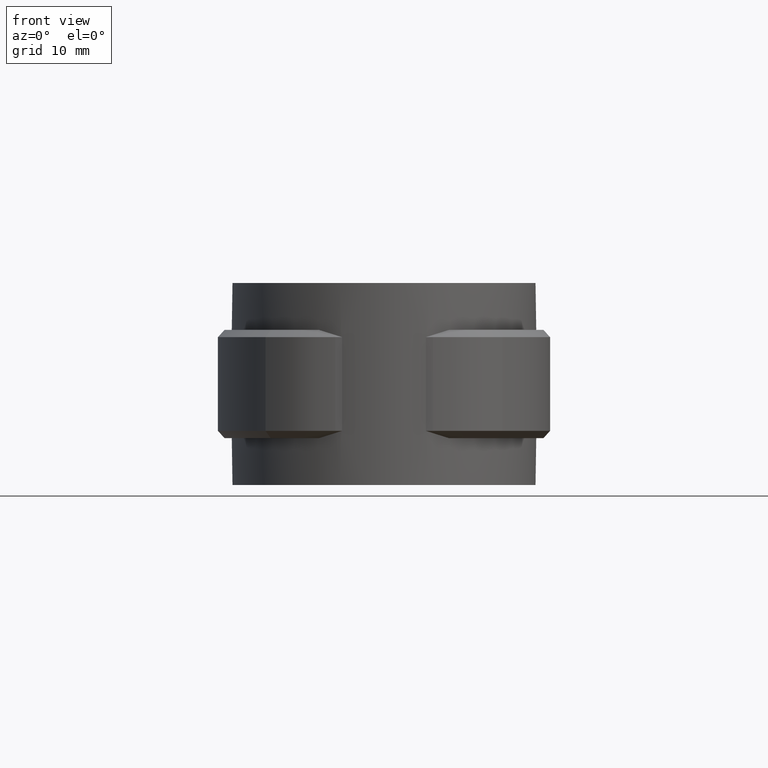
[diagram: clean part render]
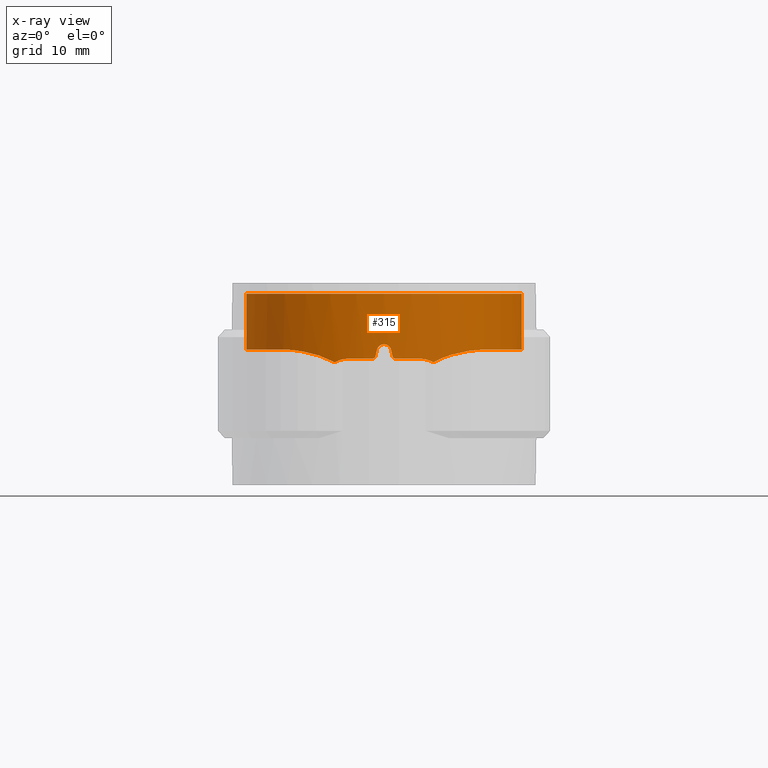
[diagram: x-ray — body ghosted, one internal face saturated and labeled with its STEP entity id]
A machine part, front view, then the same camera in x-ray: the body is ghosted and one INTERNAL B-rep face — a face not visible from any outside direction — is saturated and labeled: STEP entity #315.
In plain terms, the highlighted cylindrical surface (partial cylindrical patch) has radius 19.1 mm, axis along (0, 0, 1).
Its self-contained STEP definition (entity closure, byte-faithful):
#315 = ADVANCED_FACE( '', ( #508 ), #509, .T. );
#508 = FACE_OUTER_BOUND( '', #922, .T. );
#509 = CYLINDRICAL_SURFACE( '', #923, 19.1000000000000 );
#922 = EDGE_LOOP( '', ( #1720, #1721, #1722, #1723, #1724, #1725, #1726, #1727, #1728, #1729, #1730, #1731, #1732, #1733, #1734, #1735 ) );
#923 = AXIS2_PLACEMENT_3D( '', #1736, #1737, #1738 );
#1720 = ORIENTED_EDGE( '', *, *, #3976, .F. );
#1721 = ORIENTED_EDGE( '', *, *, #3977, .F. );
#1722 = ORIENTED_EDGE( '', *, *, #3978, .F. );
#1723 = ORIENTED_EDGE( '', *, *, #3979, .F. );
#1724 = ORIENTED_EDGE( '', *, *, #3980, .F. );
#1725 = ORIENTED_EDGE( '', *, *, #3981, .T. );
#1726 = ORIENTED_EDGE( '', *, *, #3982, .F. );
#1727 = ORIENTED_EDGE( '', *, *, #3983, .F. );
#1728 = ORIENTED_EDGE( '', *, *, #3984, .F. );
#1729 = ORIENTED_EDGE( '', *, *, #3985, .F. );
#1730 = ORIENTED_EDGE( '', *, *, #3986, .F. );
#1731 = ORIENTED_EDGE( '', *, *, #3987, .F. );
#1732 = ORIENTED_EDGE( '', *, *, #3988, .F. );
#1733 = ORIENTED_EDGE( '', *, *, #3989, .F. );
#1734 = ORIENTED_EDGE( '', *, *, #3990, .F. );
#1735 = ORIENTED_EDGE( '', *, *, #3991, .F. );
#1736 = CARTESIAN_POINT( '', ( 0.000000000000000, 0.000000000000000, 0.000000000000000 ) );
#1737 = DIRECTION( '', ( 0.000000000000000, 0.000000000000000, 1.00000000000000 ) );
#1738 = DIRECTION( '', ( 1.00000000000000, -6.12303176911189E-017, 0.000000000000000 ) );
#3976 = EDGE_CURVE( '', #4482, #4483, #4484, .T. );
#3977 = EDGE_CURVE( '', #4485, #4482, #4486, .T. );
#3978 = EDGE_CURVE( '', #4487, #4485, #4488, .T. );
#3979 = EDGE_CURVE( '', #4489, #4487, #4490, .T. );
#3980 = EDGE_CURVE( '', #4491, #4489, #4492, .F. );
#3981 = EDGE_CURVE( '', #4491, #4493, #4494, .T. );
#3982 = EDGE_CURVE( '', #4495, #4493, #4496, .T. );
#3983 = EDGE_CURVE( '', #4497, #4495, #4498, .T. );
#3984 = EDGE_CURVE( '', #4499, #4497, #4500, .T. );
#3985 = EDGE_CURVE( '', #4501, #4499, #4502, .T. );
#3986 = EDGE_CURVE( '', #4503, #4501, #4504, .T. );
#3987 = EDGE_CURVE( '', #4505, #4503, #4506, .T. );
#3988 = EDGE_CURVE( '', #4507, #4505, #4508, .T. );
#3989 = EDGE_CURVE( '', #4509, #4507, #4510, .T. );
#3990 = EDGE_CURVE( '', #4511, #4509, #4512, .T. );
#3991 = EDGE_CURVE( '', #4483, #4511, #4513, .T. );
#4482 = VERTEX_POINT( '', #5326 );
#4483 = VERTEX_POINT( '', #5327 );
#4484 = B_SPLINE_CURVE_WITH_KNOTS( '', 3, ( #5328, #5329, #5330, #5331, #5332, #5333, #5334, #5335 ), .UNSPECIFIED., .F., .F., ( 4, 2, 2, 4 ), ( 0.00930485489728145, 0.00980159790012563, 0.0102983409029698, 0.0112918269086582 ), .UNSPECIFIED. );
#4485 = VERTEX_POINT( '', #5336 );
#4486 = B_SPLINE_CURVE_WITH_KNOTS( '', 3, ( #5337, #5338, #5339, #5340, #5341, #5342, #5343, #5344, #5345, #5346, #5347, #5348 ), .UNSPECIFIED., .F., .F., ( 4, 2, 2, 2, 2, 4 ), ( 0.000000000000000, 0.00223758353469312, 0.00335637530203968, 0.00447516706938624, 0.00671275060407936, 0.00895033413877248 ), .UNSPECIFIED. );
#4487 = VERTEX_POINT( '', #5349 );
#4488 = B_SPLINE_CURVE_WITH_KNOTS( '', 3, ( #5350, #5351, #5352, #5353, #5354, #5355, #5356, #5357, #5358, #5359, #5360, #5361, #5362, #5363, #5364, #5365, #5366, #5367, #5368, #5369, #5370, #5371, #5372, #5373, #5374, #5375, #5376, #5377, #5378, #5379, #5380, #5381, #5382, #5383, #5384, #5385 ), .UNSPECIFIED., .F., .F., ( 4, 2, 2, 2, 2, 2, 2, 2, 2, 2, 2, 2, 2, 2, 2, 2, 2, 4 ), ( 0.000000000000000, 0.00475108088717999, 0.00593885110897499, 0.00712662133077000, 0.00950216177436000, 0.0118777022179500, 0.0130654724397450, 0.0142532426615400, 0.0190043235487200, 0.0201920937705150, 0.0213798639923100, 0.0237554044359000, 0.0249431746576950, 0.0261309448794899, 0.0285064853230799, 0.0308820257666699, 0.0332575662102599, 0.0380086470974399 ), .UNSPECIFIED. );
#4489 = VERTEX_POINT( '', #5386 );
#4490 = LINE( '', #5387, #5388 );
#4491 = VERTEX_POINT( '', #5389 );
#4492 = CIRCLE( '', #5390, 19.1000000000000 );
#4493 = VERTEX_POINT( '', #5391 );
#4494 = LINE( '', #5392, #5393 );
#4495 = VERTEX_POINT( '', #5394 );
#4496 = B_SPLINE_CURVE_WITH_KNOTS( '', 3, ( #5395, #5396, #5397, #5398, #5399, #5400, #5401, #5402, #5403, #5404, #5405, #5406, #5407, #5408, #5409, #5410, #5411, #5412, #5413, #5414, #5415, #5416, #5417, #5418, #5419, #5420, #5421, #5422, #5423, #5424, #5425, #5426, #5427, #5428, #5429, #5430 ), .UNSPECIFIED., .F., .F., ( 4, 2, 2, 2, 2, 2, 2, 2, 2, 2, 2, 2, 2, 2, 2, 2, 2, 4 ), ( 0.000000000000000, 0.00475107654079166, 0.00593884567598957, 0.00712661481118749, 0.00950215308158332, 0.0118776913519791, 0.0130654604871771, 0.0142532296223750, 0.0190043061631666, 0.0201920752983646, 0.0213798444335625, 0.0237553827039583, 0.0249431518391562, 0.0261309209743541, 0.0285064592447500, 0.0308819975151458, 0.0332575357855416, 0.0380086123263333 ), .UNSPECIFIED. );
#4497 = VERTEX_POINT( '', #5431 );
#4498 = B_SPLINE_CURVE_WITH_KNOTS( '', 3, ( #5432, #5433, #5434, #5435, #5436, #5437, #5438, #5439, #5440, #5441, #5442, #5443 ), .UNSPECIFIED., .F., .F., ( 4, 2, 2, 2, 2, 4 ), ( 0.00175160211349865, 0.00396907568868727, 0.00618654926387589, 0.00729528605147020, 0.00840402283906450, 0.0106214964142531 ), .UNSPECIFIED. );
#4499 = VERTEX_POINT( '', #5444 );
#4500 = B_SPLINE_CURVE_WITH_KNOTS( '', 3, ( #5445, #5446, #5447, #5448, #5449, #5450, #5451, #5452 ), .UNSPECIFIED., .F., .F., ( 4, 2, 2, 4 ), ( 3.46944695195361E-018, 0.000996698371654923, 0.00149504755748238, 0.00199339674330984 ), .UNSPECIFIED. );
#4501 = VERTEX_POINT( '', #5453 );
#4502 = CIRCLE( '', #5454, 19.1000000000000 );
#4503 = VERTEX_POINT( '', #5455 );
#4504 = B_SPLINE_CURVE_WITH_KNOTS( '', 3, ( #5456, #5457, #5458, #5459, #5460, #5461 ), .UNSPECIFIED., .F., .F., ( 4, 2, 4 ), ( 4.33680868994202E-019, 0.000336337775742347, 0.000672675551484694 ), .UNSPECIFIED. );
#4505 = VERTEX_POINT( '', #5462 );
#4506 = ELLIPSE( '', #5463, 87.0111998839009, 19.1000000000000 );
#4507 = VERTEX_POINT( '', #5464 );
#4508 = B_SPLINE_CURVE_WITH_KNOTS( '', 3, ( #5465, #5466, #5467, #5468, #5469, #5470, #5471, #5472, #5473, #5474 ), .UNSPECIFIED., .F., .F., ( 4, 2, 2, 2, 4 ), ( 0.000000000000000, 0.000671676872309651, 0.00134335374461930, 0.00201503061692895, 0.00268670748923860 ), .UNSPECIFIED. );
#4509 = VERTEX_POINT( '', #5475 );
#4510 = ELLIPSE( '', #5476, 87.0111554974909, 19.1000000000000 );
#4511 = VERTEX_POINT( '', #5477 );
#4512 = B_SPLINE_CURVE_WITH_KNOTS( '', 3, ( #5478, #5479, #5480, #5481, #5482, #5483 ), .UNSPECIFIED., .F., .F., ( 4, 2, 4 ), ( 8.20849171219253E-018, 0.000336327118468111, 0.000672654236936215 ), .UNSPECIFIED. );
#4513 = CIRCLE( '', #5484, 19.1000000000000 );
#5326 = CARTESIAN_POINT( '', ( 6.81905526878745, -17.8412579500788, -9.50984315978298 ) );
#5327 = CARTESIAN_POINT( '', ( 5.00000000000000, -18.4339360962329, -9.00000000000000 ) );
#5328 = CARTESIAN_POINT( '', ( 6.81905526878725, -17.8412579500781, -9.50984315978286 ) );
#5329 = CARTESIAN_POINT( '', ( 6.68368271215044, -17.8929983009080, -9.42748956578828 ) );
#5330 = CARTESIAN_POINT( '', ( 6.54119389277559, -17.9456552154205, -9.35360424239617 ) );
#5331 = CARTESIAN_POINT( '', ( 6.25071525526398, -18.0488868756841, -9.22726471757245 ) );
#5332 = CARTESIAN_POINT( '', ( 6.10205342860325, -18.0997396329836, -9.17427268426422 ) );
#5333 = CARTESIAN_POINT( '', ( 5.64566298384222, -18.2493565032353, -9.04557456820890 ) );
#5334 = CARTESIAN_POINT( '', ( 5.32448815223454, -18.3459222964290, -8.99999999999994 ) );
#5335 = CARTESIAN_POINT( '', ( 5.00000000000000, -18.4339360962330, -8.99999999999994 ) );
#5336 = CARTESIAN_POINT( '', ( 13.9497974310064, -13.0465800234959, -7.72134842581987 ) );
#5337 = CARTESIAN_POINT( '', ( 13.9487375409338, -13.0477094163743, -7.72135718793491 ) );
#5338 = CARTESIAN_POINT( '', ( 13.4375300633922, -13.5942190530959, -7.73205241137675 ) );
#5339 = CARTESIAN_POINT( '', ( 12.8974956627212, -14.1073780023349, -7.76999278455775 ) );
#5340 = CARTESIAN_POINT( '', ( 12.0451717407557, -14.8277515103729, -7.87211065263762 ) );
#5341 = CARTESIAN_POINT( '', ( 11.7537896944006, -15.0596842705441, -7.91397282004263 ) );
#5342 = CARTESIAN_POINT( '', ( 11.1644459084714, -15.5016389477206, -8.01349445764533 ) );
#5343 = CARTESIAN_POINT( '', ( 10.8656252400343, -15.7124170119223, -8.07122112833062 ) );
#5344 = CARTESIAN_POINT( '', ( 9.95800661632358, -16.3148872225008, -8.27142640207175 ) );
#5345 = CARTESIAN_POINT( '', ( 9.33787226663546, -16.6767989057806, -8.44006696159535 ) );
#5346 = CARTESIAN_POINT( '', ( 8.07731289124752, -17.3224852913412, -8.88128701216451 ) );
#5347 = CARTESIAN_POINT( '', ( 7.43085125747949, -17.6074251860550, -9.15670282519943 ) );
#5348 = CARTESIAN_POINT( '', ( 6.81905526878943, -17.8412579500772, -9.50984315978024 ) );
#5349 = CARTESIAN_POINT( '', ( 6.05609756097560, 18.1144605862815, -7.72310677885710 ) );
#5350 = CARTESIAN_POINT( '', ( 6.05609756097560, 18.1144605862815, -7.72310677885712 ) );
#5351 = CARTESIAN_POINT( '', ( 7.57969694207757, 17.6050848611890, -7.72562012981628 ) );
#5352 = CARTESIAN_POINT( '', ( 9.00781461851785, 16.9172655312135, -7.72756432809327 ) );
#5353 = CARTESIAN_POINT( '', ( 10.6774888721976, 15.8416861069945, -7.72556171551318 ) );
#5354 = CARTESIAN_POINT( '', ( 11.0055643952891, 15.6156198358674, -7.72500931238456 ) );
#5355 = CARTESIAN_POINT( '', ( 11.6497459801908, 15.1411178290845, -7.72378723809442 ) );
#5356 = CARTESIAN_POINT( '', ( 11.9661862444494, 14.8922751207296, -7.72311724225985 ) );
#5357 = CARTESIAN_POINT( '', ( 12.8841862084422, 14.1225221465428, -7.72141074492537 ) );
#5358 = CARTESIAN_POINT( '', ( 13.4590934723205, 13.5753396746223, -7.72102008189725 ) );
#5359 = CARTESIAN_POINT( '', ( 14.5366058856560, 12.4146741279481, -7.72209307797864 ) );
#5360 = CARTESIAN_POINT( '', ( 15.0392097496581, 11.8011898132735, -7.72312844814024 ) );
#5361 = CARTESIAN_POINT( '', ( 15.7377328261334, 10.8301774324812, -7.72407804340158 ) );
#5362 = CARTESIAN_POINT( '', ( 15.9619535607511, 10.4969838253384, -7.72430459482359 ) );
#5363 = CARTESIAN_POINT( '', ( 16.3882395453966, 9.81815845806580, -7.72448464818963 ) );
#5364 = CARTESIAN_POINT( '', ( 16.5896568409422, 9.47372222854536, -7.72443862695567 ) );
#5365 = CARTESIAN_POINT( '', ( 17.5394804084396, 7.72700837476190, -7.72358711091556 ) );
#5366 = CARTESIAN_POINT( '', ( 18.1187582240814, 6.25227254480823, -7.72049976296088 ) );
#5367 = CARTESIAN_POINT( '', ( 18.6117181531904, 4.30982503804201, -7.72188431563499 ) );
#5368 = CARTESIAN_POINT( '', ( 18.6981535280275, 3.91765520529962, -7.72231305974907 ) );
#5369 = CARTESIAN_POINT( '', ( 18.8453538199351, 3.13394433051340, -7.72317948483670 ) );
#5370 = CARTESIAN_POINT( '', ( 18.9064230279706, 2.74124292481065, -7.72361810307561 ) );
#5371 = CARTESIAN_POINT( '', ( 19.0526474488858, 1.56064189680553, -7.72466713815329 ) );
#5372 = CARTESIAN_POINT( '', ( 19.1009604714527, 0.770254973364757, -7.72496397996977 ) );
#5373 = CARTESIAN_POINT( '', ( 19.0994981536895, -0.420316774834447, -7.72453235057386 ) );
#5374 = CARTESIAN_POINT( '', ( 19.0866535791344, -0.818008289223870, -7.72425400711995 ) );
#5375 = CARTESIAN_POINT( '', ( 19.0357810945132, -1.61509149366079, -7.72352624738677 ) );
#5376 = CARTESIAN_POINT( '', ( 18.9975364675251, -2.01584394781423, -7.72307515961964 ) );
#5377 = CARTESIAN_POINT( '', ( 18.8459467068403, -3.20630119459724, -7.72177922285933 ) );
#5378 = CARTESIAN_POINT( '', ( 18.6961347971829, -3.98644916271011, -7.72102289809109 ) );
#5379 = CARTESIAN_POINT( '', ( 18.3019266073315, -5.52057204836203, -7.72184820040979 ) );
#5380 = CARTESIAN_POINT( '', ( 18.0575251328200, -6.27454562977232, -7.72306305140462 ) );
#5381 = CARTESIAN_POINT( '', ( 17.4725612059799, -7.75588432648445, -7.72476107474609 ) );
#5382 = CARTESIAN_POINT( '', ( 17.1295431999573, -8.48668405816067, -7.72522902838234 ) );
#5383 = CARTESIAN_POINT( '', ( 15.9798247934780, -10.5827891285198, -7.72453653077102 ) );
#5384 = CARTESIAN_POINT( '', ( 15.0500236748557, -11.8696085672741, -7.72043645344049 ) );
#5385 = CARTESIAN_POINT( '', ( 13.9529666093793, -13.0431868344184, -7.72131128926675 ) );
#5386 = CARTESIAN_POINT( '', ( 6.05609756097560, 18.1144605862815, 0.000000000000000 ) );
#5387 = CARTESIAN_POINT( '', ( 6.05609756097560, 18.1144605862815, 0.000000000000000 ) );
#5388 = VECTOR( '', #8038, 1000.00000000000 );
#5389 = CARTESIAN_POINT( '', ( -6.05609756097561, 18.1144605862815, 0.000000000000000 ) );
#5390 = AXIS2_PLACEMENT_3D( '', #8039, #8040, #8041 );
#5391 = CARTESIAN_POINT( '', ( -6.05609756097560, 18.1144605862815, -7.72310677885710 ) );
#5392 = CARTESIAN_POINT( '', ( -6.05609756097560, 18.1144605862815, 0.000000000000000 ) );
#5393 = VECTOR( '', #8042, 1000.00000000000 );
#5394 = CARTESIAN_POINT( '', ( -13.9497974301473, -13.0465800259749, -7.72134842667799 ) );
#5395 = CARTESIAN_POINT( '', ( -13.9529666093794, -13.0431868344184, -7.72131128926690 ) );
#5396 = CARTESIAN_POINT( '', ( -15.0500237828148, -11.8696084517849, -7.72043645335455 ) );
#5397 = CARTESIAN_POINT( '', ( -15.9781303747222, -10.5846086327108, -7.72452833013873 ) );
#5398 = CARTESIAN_POINT( '', ( -16.9339433597668, -8.84360498747048, -7.72511298919390 ) );
#5399 = CARTESIAN_POINT( '', ( -17.1147383029710, -8.48856659890243, -7.72507329389932 ) );
#5400 = CARTESIAN_POINT( '', ( -17.4551491159639, -7.76452184121148, -7.72469069820386 ) );
#5401 = CARTESIAN_POINT( '', ( -17.6148654171088, -7.39499751519392, -7.72434629642376 ) );
#5402 = CARTESIAN_POINT( '', ( -18.0554123260639, -6.28092138035001, -7.72307252744860 ) );
#5403 = CARTESIAN_POINT( '', ( -18.3002941409914, -5.52596405757659, -7.72185533536815 ) );
#5404 = CARTESIAN_POINT( '', ( -18.6949045640674, -3.99219084624516, -7.72102178329999 ) );
#5405 = CARTESIAN_POINT( '', ( -18.8446314327881, -3.21337446638487, -7.72177215684534 ) );
#5406 = CARTESIAN_POINT( '', ( -18.9963353447760, -2.02687463685484, -7.72306284032770 ) );
#5407 = CARTESIAN_POINT( '', ( -19.0347879010739, -1.62710831433997, -7.72351382801320 ) );
#5408 = CARTESIAN_POINT( '', ( -19.0862881371186, -0.827186225919097, -7.72424703716699 ) );
#5409 = CARTESIAN_POINT( '', ( -19.0993352459974, -0.428393244554314, -7.72452781443444 ) );
#5410 = CARTESIAN_POINT( '', ( -19.1025353225673, 1.55986731028732, -7.72525660513806 ) );
#5411 = CARTESIAN_POINT( '', ( -18.9094638628394, 3.13248650141636, -7.72273565996693 ) );
#5412 = CARTESIAN_POINT( '', ( -18.4177254912729, 5.07523705672606, -7.72133575810553 ) );
#5413 = CARTESIAN_POINT( '', ( -18.3069348882444, 5.46123642466600, -7.72123836358931 ) );
#5414 = CARTESIAN_POINT( '', ( -18.0630822162915, 6.22045248643625, -7.72154207712793 ) );
#5415 = CARTESIAN_POINT( '', ( -17.9297347740257, 6.59483552095199, -7.72188622711883 ) );
#5416 = CARTESIAN_POINT( '', ( -17.4959848333618, 7.70256406477957, -7.72303901687143 ) );
#5417 = CARTESIAN_POINT( '', ( -17.1620032405417, 8.42054782988433, -7.72392232629606 ) );
#5418 = CARTESIAN_POINT( '', ( -16.5936474503959, 9.46669739338390, -7.72443662379579 ) );
#5419 = CARTESIAN_POINT( '', ( -16.3929329080575, 9.81026156858543, -7.72448436445543 ) );
#5420 = CARTESIAN_POINT( '', ( -15.9685511547398, 10.4868896909712, -7.72430958813522 ) );
#5421 = CARTESIAN_POINT( '', ( -15.7440449640187, 10.8210474374511, -7.72408539519682 ) );
#5422 = CARTESIAN_POINT( '', ( -15.0437365910588, 11.7955952486206, -7.72313701580573 ) );
#5423 = CARTESIAN_POINT( '', ( -14.5404233322605, 12.4102104361820, -7.72209974525944 ) );
#5424 = CARTESIAN_POINT( '', ( -13.4630976801797, 13.5713755605541, -7.72102122423220 ) );
#5425 = CARTESIAN_POINT( '', ( -12.8890814142129, 14.1179217442160, -7.72140425858117 ) );
#5426 = CARTESIAN_POINT( '', ( -11.6691719729920, 15.1418149355602, -7.72366678687973 ) );
#5427 = CARTESIAN_POINT( '', ( -11.0194818660192, 15.6210140373318, -7.72514771389557 ) );
#5428 = CARTESIAN_POINT( '', ( -9.01017151120732, 16.9164727392802, -7.72756907713160 ) );
#5429 = CARTESIAN_POINT( '', ( -7.57969615966779, 17.6050851227673, -7.72562012852561 ) );
#5430 = CARTESIAN_POINT( '', ( -6.05609756097559, 18.1144605862815, -7.72310677885712 ) );
#5431 = CARTESIAN_POINT( '', ( -6.81905526878630, -17.8412579500785, -9.50984315978221 ) );
#5432 = CARTESIAN_POINT( '', ( -6.81905526878666, -17.8412579500783, -9.50984315978184 ) );
#5433 = CARTESIAN_POINT( '', ( -7.42763704449373, -17.6086536810444, -9.15855813035019 ) );
#5434 = CARTESIAN_POINT( '', ( -8.07310001835052, -17.3244444503889, -8.88298741812878 ) );
#5435 = CARTESIAN_POINT( '', ( -9.33361801481501, -16.6791754644653, -8.44133172379232 ) );
#5436 = CARTESIAN_POINT( '', ( -9.95588586231229, -16.3163826749133, -8.27183600323607 ) );
#5437 = CARTESIAN_POINT( '', ( -10.8690757200517, -15.7100825814565, -8.07048922596542 ) );
#5438 = CARTESIAN_POINT( '', ( -11.1710481874405, -15.4969193564695, -8.01225232479549 ) );
#5439 = CARTESIAN_POINT( '', ( -11.7626909924526, -15.0527714313049, -7.91260026409490 ) );
#5440 = CARTESIAN_POINT( '', ( -12.0519029772980, -14.8222324025891, -7.87122187063843 ) );
#5441 = CARTESIAN_POINT( '', ( -12.8995317491439, -14.1053123232025, -7.76991572725686 ) );
#5442 = CARTESIAN_POINT( '', ( -13.4379688122563, -13.5937500058052, -7.73204323209565 ) );
#5443 = CARTESIAN_POINT( '', ( -13.9487375409338, -13.0477094163743, -7.72135718793490 ) );
#5444 = CARTESIAN_POINT( '', ( -5.00000000000005, -18.4339360962329, -9.00000000000000 ) );
#5445 = CARTESIAN_POINT( '', ( -5.00000000000005, -18.4339360962329, -8.99999999999997 ) );
#5446 = CARTESIAN_POINT( '', ( -5.32540233347649, -18.3456743349418, -8.99999999999997 ) );
#5447 = CARTESIAN_POINT( '', ( -5.64090279093309, -18.2508677392972, -9.04449098640578 ) );
#5448 = CARTESIAN_POINT( '', ( -6.10049621370886, -18.1002744545502, -9.17370584340066 ) );
#5449 = CARTESIAN_POINT( '', ( -6.25233926245169, -18.0483288156459, -9.22785801069546 ) );
#5450 = CARTESIAN_POINT( '', ( -6.54378610163743, -17.9447146186973, -9.35484637913519 ) );
#5451 = CARTESIAN_POINT( '', ( -6.68405498629607, -17.8928560150904, -9.42771603793747 ) );
#5452 = CARTESIAN_POINT( '', ( -6.81905526878627, -17.8412579500785, -9.50984315978220 ) );
#5453 = CARTESIAN_POINT( '', ( -1.65000000000003, -19.0285969004548, -9.00000000000000 ) );
#5454 = AXIS2_PLACEMENT_3D( '', #8043, #8044, #8045 );
#5455 = CARTESIAN_POINT( '', ( -1.16219512100914, -19.0646086374912, -8.60975609337373 ) );
#5456 = CARTESIAN_POINT( '', ( -1.16219512100915, -19.0646086374912, -8.60975609337372 ) );
#5457 = CARTESIAN_POINT( '', ( -1.18715765708161, -19.0630868995849, -8.72070070258703 ) );
#5458 = CARTESIAN_POINT( '', ( -1.24923773707083, -19.0593103406564, -8.81980675290700 ) );
#5459 = CARTESIAN_POINT( '', ( -1.42662763242333, -19.0468537870059, -8.96151006055798 ) );
#5460 = CARTESIAN_POINT( '', ( -1.53670637462590, -19.0384207714867, -8.99999999999994 ) );
#5461 = CARTESIAN_POINT( '', ( -1.65000000000003, -19.0285969004548, -8.99999999999994 ) );
#5462 = CARTESIAN_POINT( '', ( -0.975610000000025, -19.0750671067732, -7.78048800000004 ) );
#5463 = AXIS2_PLACEMENT_3D( '', #8046, #8047, #8048 );
#5464 = CARTESIAN_POINT( '', ( 0.975609757981813, -19.0750671191514, -7.78048781325256 ) );
#5465 = CARTESIAN_POINT( '', ( 0.975609757981815, -19.0750671191514, -7.78048781325255 ) );
#5466 = CARTESIAN_POINT( '', ( 0.925757385009208, -19.0776168591459, -7.55892180128992 ) );
#5467 = CARTESIAN_POINT( '', ( 0.801997831383430, -19.0839791880777, -7.36098161968766 ) );
#5468 = CARTESIAN_POINT( '', ( 0.447436048285922, -19.0955822942172, -7.07731587360205 ) );
#5469 = CARTESIAN_POINT( '', ( 0.227117419891250, -19.1000000160627, -6.99999971248022 ) );
#5470 = CARTESIAN_POINT( '', ( -0.227120121551986, -19.0999999839372, -7.00000028065425 ) );
#5471 = CARTESIAN_POINT( '', ( -0.447488444089590, -19.0955808086857, -7.07734852942236 ) );
#5472 = CARTESIAN_POINT( '', ( -0.801994740210287, -19.0839790600733, -7.36098809107857 ) );
#5473 = CARTESIAN_POINT( '', ( -0.925757662153678, -19.0776168456052, -7.55892194611682 ) );
#5474 = CARTESIAN_POINT( '', ( -0.975610000000025, -19.0750671067732, -7.78048800000004 ) );
#5475 = CARTESIAN_POINT( '', ( 1.16219499999999, -19.0646086448680, -8.60975599999999 ) );
#5476 = AXIS2_PLACEMENT_3D( '', #8049, #8050, #8051 );
#5477 = CARTESIAN_POINT( '', ( 1.64999999999995, -19.0285969004549, -9.00000000000000 ) );
#5478 = CARTESIAN_POINT( '', ( 1.64999999999995, -19.0285969004549, -8.99999999999995 ) );
#5479 = CARTESIAN_POINT( '', ( 1.53670633490443, -19.0384207749310, -9.00000000048620 ) );
#5480 = CARTESIAN_POINT( '', ( 1.42662640035972, -19.0468538504426, -8.96150724820204 ) );
#5481 = CARTESIAN_POINT( '', ( 1.24924883699643, -19.0593095842841, -8.81981751974237 ) );
#5482 = CARTESIAN_POINT( '', ( 1.18715754853016, -19.0630869063613, -8.72070066235751 ) );
#5483 = CARTESIAN_POINT( '', ( 1.16219499999999, -19.0646086448680, -8.60975599999999 ) );
#5484 = AXIS2_PLACEMENT_3D( '', #8052, #8053, #8054 );
#8038 = DIRECTION( '', ( 0.000000000000000, 0.000000000000000, -1.00000000000000 ) );
#8039 = CARTESIAN_POINT( '', ( 0.000000000000000, 0.000000000000000, 0.000000000000000 ) );
#8040 = DIRECTION( '', ( 0.000000000000000, 0.000000000000000, -1.00000000000000 ) );
#8041 = DIRECTION( '', ( -1.00000000000000, 0.000000000000000, 0.000000000000000 ) );
#8042 = DIRECTION( '', ( 0.000000000000000, 0.000000000000000, -1.00000000000000 ) );
#8043 = CARTESIAN_POINT( '', ( 0.000000000000000, 0.000000000000000, -9.00000000000000 ) );
#8044 = DIRECTION( '', ( 6.12303176911189E-017, 0.000000000000000, -1.00000000000000 ) );
#8045 = DIRECTION( '', ( -1.00000000000000, 0.000000000000000, -6.12303176911189E-017 ) );
#8046 = CARTESIAN_POINT( '', ( 0.000000000000000, 0.000000000000000, -3.44443890776446 ) );
#8047 = DIRECTION( '', ( 0.975609806487711, 0.000000000000000, -0.219511971165610 ) );
#8048 = DIRECTION( '', ( -0.219511971165610, 0.000000000000000, -0.975609806487711 ) );
#8049 = CARTESIAN_POINT( '', ( 0.000000000000000, 0.000000000000000, -3.44444212055029 ) );
#8050 = DIRECTION( '', ( -0.975609781292647, 0.000000000000000, -0.219512083143762 ) );
#8051 = DIRECTION( '', ( 0.219512083143762, 0.000000000000000, -0.975609781292647 ) );
#8052 = CARTESIAN_POINT( '', ( 0.000000000000000, 0.000000000000000, -9.00000000000000 ) );
#8053 = DIRECTION( '', ( 6.12303176911189E-017, 0.000000000000000, -1.00000000000000 ) );
#8054 = DIRECTION( '', ( -1.00000000000000, 0.000000000000000, -6.12303176911189E-017 ) );